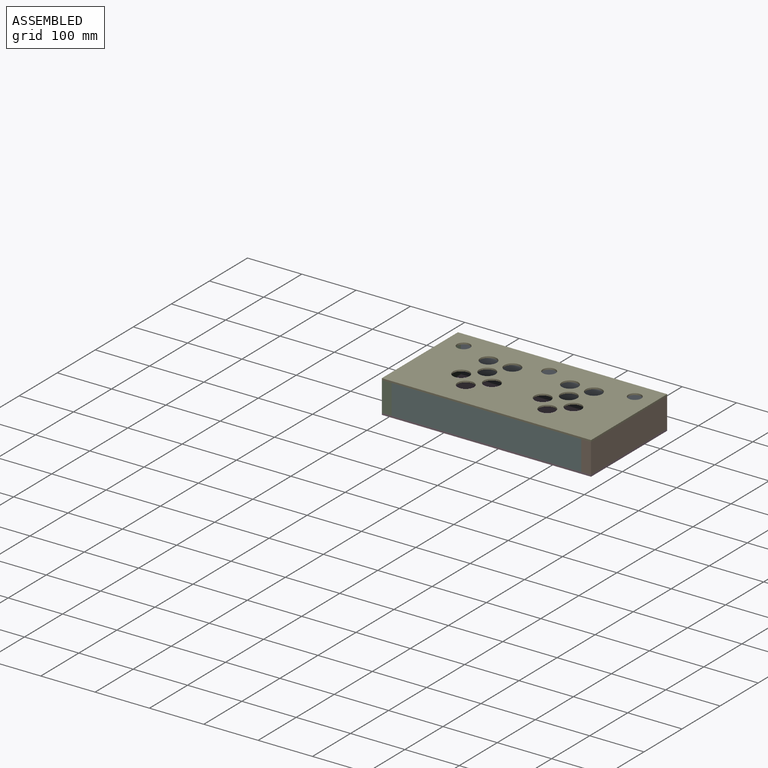
[diagram: assembled view]
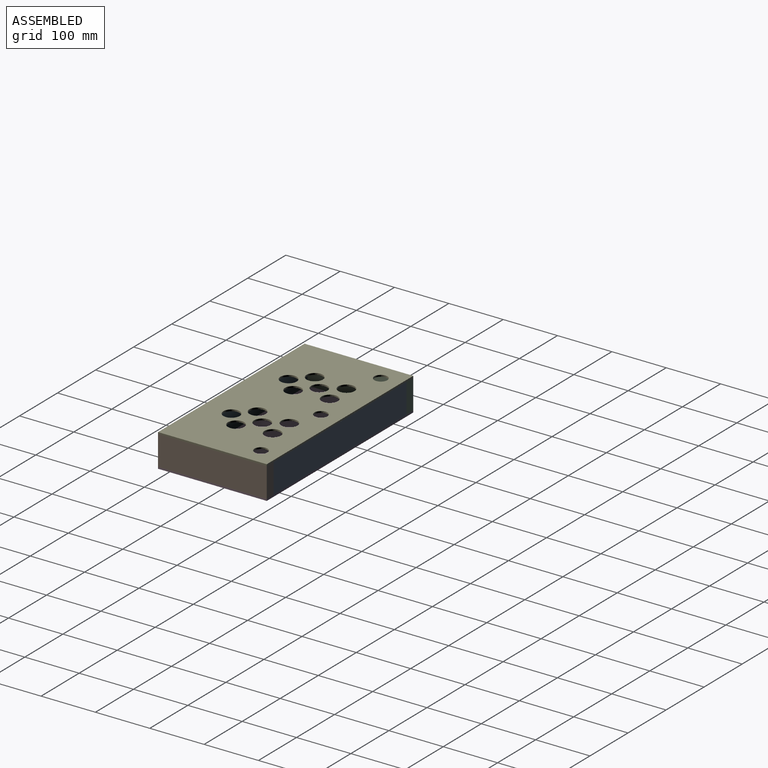
[diagram: assembled view, second angle]
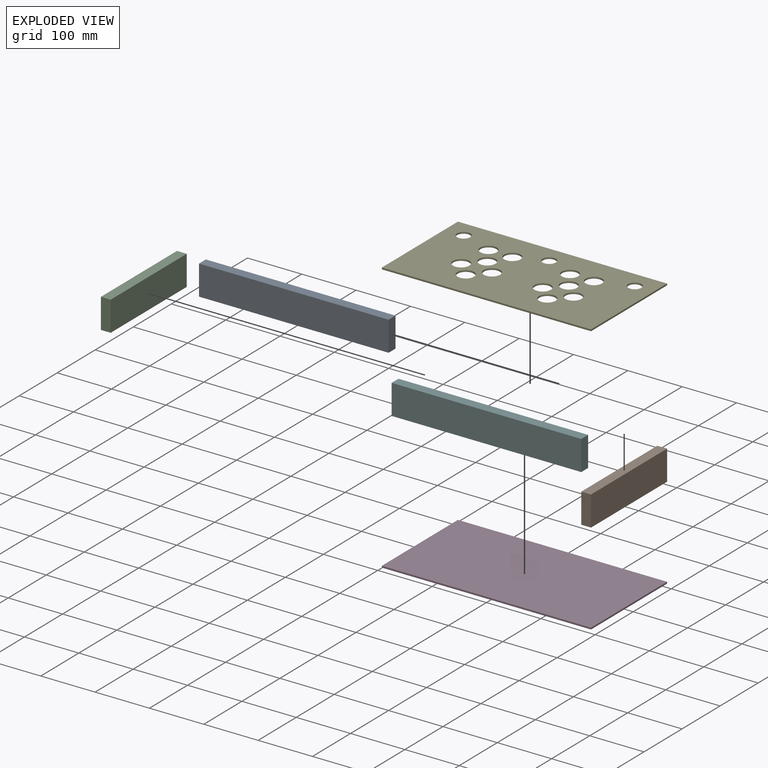
[diagram: exploded view]
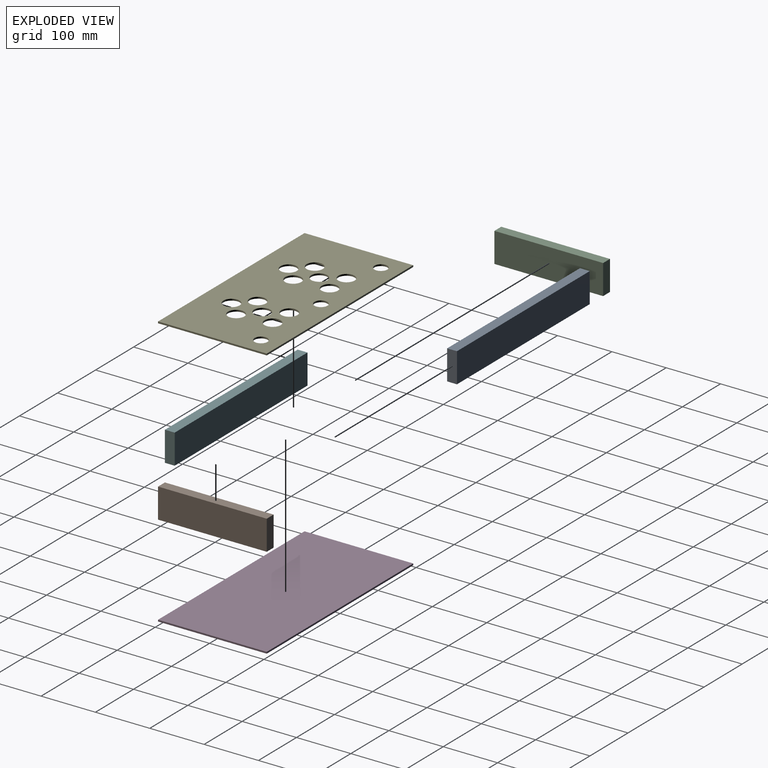
[diagram: exploded view, second angle]
ASSEMBLY  parts=6 mates=5
PART A: 6 faces, bbox 349x18x55 mm
  f0: plane 349x18mm, normal (0,0,1), area 6282mm2, adj f1,f3,f4,f5
  f1: plane 55x18mm, normal (-1,0,0), area 990mm2, adj f0,f2,f4,f5
  f2: plane 349x18mm, normal (0,0,-1), area 6282mm2, adj f1,f3,f4,f5
  f3: plane 55x18mm, normal (1,0,0), area 990mm2, adj f0,f2,f4,f5
  f4: plane 349x55mm, normal (0,-1,0), area 19195mm2, adj f0,f1,f2,f3
  f5: plane 349x55mm, normal (0,1,0), area 19195mm2, adj f0,f1,f2,f3
PART B: 6 faces, bbox 18x200x55 mm
  f0: plane 55x18mm, normal (0,1,0), area 990mm2, adj f1,f3,f4,f5
  f1: plane 200x18mm, normal (0,0,1), area 3600mm2, adj f0,f2,f4,f5
  f2: plane 55x18mm, normal (0,-1,0), area 990mm2, adj f1,f3,f4,f5
  f3: plane 200x18mm, normal (0,0,-1), area 3600mm2, adj f0,f2,f4,f5
  f4: plane 200x55mm, normal (1,0,0), area 11000mm2, adj f0,f1,f2,f3
  f5: plane 200x55mm, normal (-1,0,0), area 11000mm2, adj f0,f1,f2,f3
PART C: same geometry as B
PART D: 6 faces, bbox 385x200x3 mm
  f0: plane 200x3mm, normal (1,0,0), area 600mm2, adj f1,f3,f4,f5
  f1: plane 385x3mm, normal (0,1,0), area 1155mm2, adj f0,f2,f4,f5
  f2: plane 200x3mm, normal (-1,0,0), area 600mm2, adj f1,f3,f4,f5
  f3: plane 385x3mm, normal (0,-1,0), area 1155mm2, adj f0,f2,f4,f5
  f4: plane 385x200mm, normal (0,0,1), area 77000mm2, adj f0,f1,f2,f3
  f5: plane 385x200mm, normal (0,0,-1), area 77000mm2, adj f0,f1,f2,f3
PART E: 21 faces, bbox 385x200x3 mm
  f0: plane 385x3mm, normal (0,-1,0), area 1155mm2, adj f1,f18,f19,f20
  f1: plane 200x3mm, normal (1,0,0), area 600mm2, adj f0,f2,f19,f20
  f2: plane 385x3mm, normal (0,1,0), area 1155mm2, adj f1,f18,f19,f20
  f3: cylinder r=15mm len=30mm, axis (0,0,-1), area 282.7mm2, adj f19,f20
  f4: cylinder r=15mm len=30mm, axis (0,0,-1), area 282.7mm2, adj f19,f20
  f5: cylinder r=15mm len=30mm, axis (0,0,-1), area 282.7mm2, adj f19,f20
  f6: cylinder r=15mm len=30mm, axis (0,0,-1), area 282.7mm2, adj f19,f20
  f7: cylinder r=15mm len=30mm, axis (0,0,-1), area 282.7mm2, adj f19,f20
  f8: cylinder r=15mm len=30mm, axis (0,0,-1), area 282.7mm2, adj f19,f20
  f9: cylinder r=12mm len=24mm, axis (0,0,-1), area 226.2mm2, adj f19,f20
  f10: cylinder r=15mm len=30mm, axis (0,0,-1), area 282.7mm2, adj f19,f20
  f11: cylinder r=15mm len=30mm, axis (0,0,-1), area 282.7mm2, adj f19,f20
  f12: cylinder r=15mm len=30mm, axis (0,0,-1), area 282.7mm2, adj f19,f20
  f13: cylinder r=15mm len=30mm, axis (0,0,-1), area 282.7mm2, adj f19,f20
  f14: cylinder r=15mm len=30mm, axis (0,0,-1), area 282.7mm2, adj f19,f20
  f15: cylinder r=15mm len=30mm, axis (0,0,-1), area 282.7mm2, adj f19,f20
  f16: cylinder r=12mm len=24mm, axis (0,0,-1), area 226.2mm2, adj f19,f20
  f17: cylinder r=12mm len=24mm, axis (0,0,-1), area 226.2mm2, adj f19,f20
  f18: plane 200x3mm, normal (-1,0,0), area 600mm2, adj f0,f2,f19,f20
  f19: plane 385x200mm, normal (0,0,1), area 67160.5mm2, adj f0,f1,f2,f3,f4,f5,f6,f7
  f20: plane 385x200mm, normal (0,0,-1), area 67160.5mm2, adj f0,f1,f2,f3,f4,f5,f6,f7
PART F: same geometry as A
PLACE A t=(0,100,58)mm
PLACE B t=(174.5,0,58)mm
PLACE C rot(axis=(1,0,0),180deg) t=(-192.5,0,3)mm
PLACE D t=(0,0,115)mm
PLACE E t=(0,0,58)mm
PLACE F t=(0,-82,58)mm
MATE fastened D.f4 <-> C.f1  axis (0,0,1) through (-192.5,100,3)mm
MATE fastened B.f5 <-> F.f3  axis (-1,0,0) through (174.5,-100,3)mm
MATE fastened C.f3 <-> E.f20  axis (0,0,1) through (-192.5,100,58)mm
MATE fastened B.f5 <-> A.f3  axis (-1,0,0) through (174.5,100,3)mm
MATE fastened D.f4 <-> B.f3  axis (0,0,1) through (192.5,-100,3)mm
